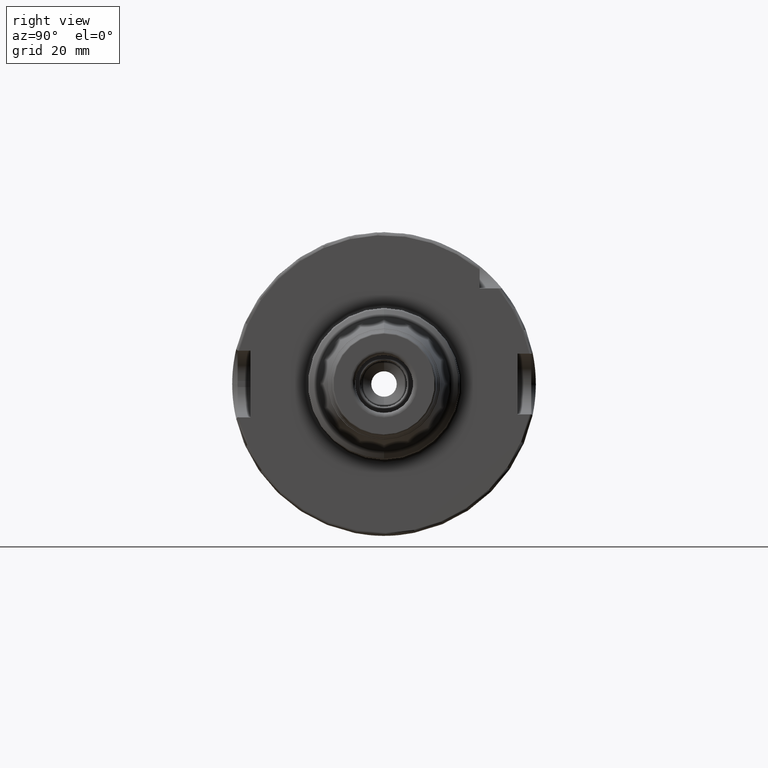
[diagram: clean part render]
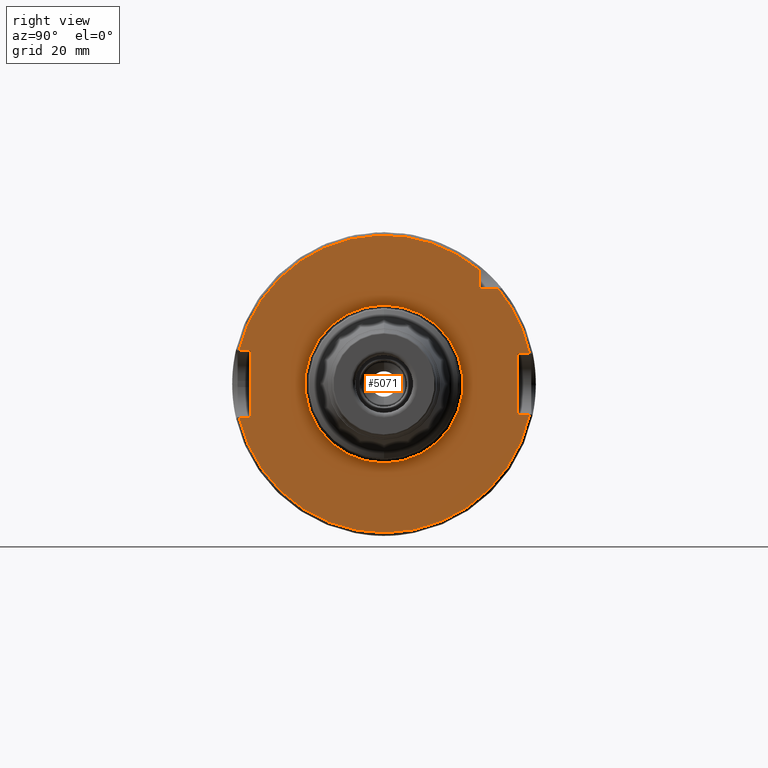
[diagram: same view with one face highlighted and labeled with its STEP entity id]
A machine part, right view. The second image highlights one B-rep face of the part: STEP entity #5071.
In plain terms, the highlighted planar face has unit normal (1, 0, 0).
Its self-contained STEP definition (entity closure, byte-faithful):
#1484=CARTESIAN_POINT('',(2.9E1,0.E0,0.E0));
#1485=DIRECTION('',(1.E0,0.E0,0.E0));
#1486=DIRECTION('',(0.E0,-9.744764396990E-1,-2.244897959184E-1));
#1487=AXIS2_PLACEMENT_3D('',#1484,#1485,#1486);
#1627=CARTESIAN_POINT('',(2.9E1,4.796873982085E1,-1.E1));
#1645=DIRECTION('',(0.E0,1.E0,0.E0));
#1646=VECTOR('',#1645,3.749345545253E0);
#1647=CARTESIAN_POINT('',(2.9E1,-4.774934554525E1,-1.1E1));
#1648=LINE('',#1647,#1646);
#1649=DIRECTION('',(0.E0,0.E0,1.E0));
#1650=VECTOR('',#1649,2.2E1);
#1651=CARTESIAN_POINT('',(2.9E1,-4.4E1,-1.1E1));
#1652=LINE('',#1651,#1650);
#1653=DIRECTION('',(0.E0,1.E0,0.E0));
#1654=VECTOR('',#1653,3.749345545253E0);
#1655=CARTESIAN_POINT('',(2.9E1,-4.774934554525E1,1.1E1));
#1656=LINE('',#1655,#1654);
#1657=DIRECTION('',(0.E0,0.E0,-1.E0));
#1658=VECTOR('',#1657,6.033318531673E0);
#1659=CARTESIAN_POINT('',(2.9E1,3.15E1,3.753331853167E1));
#1660=LINE('',#1659,#1658);
#1661=DIRECTION('',(0.E0,-1.E0,0.E0));
#1662=VECTOR('',#1661,6.033318531673E0);
#1663=CARTESIAN_POINT('',(2.9E1,3.753331853167E1,3.15E1));
#1664=LINE('',#1663,#1662);
#1665=DIRECTION('',(0.E0,-1.E0,0.E0));
#1666=VECTOR('',#1665,3.968739820846E0);
#1667=CARTESIAN_POINT('',(2.9E1,4.796873982085E1,1.E1));
#1668=LINE('',#1667,#1666);
#1669=DIRECTION('',(0.E0,0.E0,-1.E0));
#1670=VECTOR('',#1669,2.E1);
#1671=CARTESIAN_POINT('',(2.9E1,4.4E1,1.E1));
#1672=LINE('',#1671,#1670);
#1673=DIRECTION('',(0.E0,-1.E0,0.E0));
#1674=VECTOR('',#1673,3.968739820846E0);
#1675=CARTESIAN_POINT('',(2.9E1,4.796873982085E1,-1.E1));
#1676=LINE('',#1675,#1674);
#1677=CARTESIAN_POINT('',(2.9E1,0.E0,0.E0));
#1678=DIRECTION('',(1.E0,0.E0,0.E0));
#1679=DIRECTION('',(0.E0,0.E0,-1.E0));
#1680=AXIS2_PLACEMENT_3D('',#1677,#1678,#1679);
#1682=CARTESIAN_POINT('',(2.9E1,0.E0,0.E0));
#1683=DIRECTION('',(1.E0,0.E0,0.E0));
#1684=DIRECTION('',(0.E0,0.E0,1.E0));
#1685=AXIS2_PLACEMENT_3D('',#1682,#1683,#1684);
#1691=CARTESIAN_POINT('',(2.9E1,-4.774934554525E1,-1.1E1));
#1803=CARTESIAN_POINT('',(2.9E1,3.753331853167E1,3.15E1));
#1817=CARTESIAN_POINT('',(2.9E1,0.E0,0.E0));
#1818=DIRECTION('',(1.E0,0.E0,0.E0));
#1819=DIRECTION('',(0.E0,9.789538738948E-1,2.040816326531E-1));
#1820=AXIS2_PLACEMENT_3D('',#1817,#1818,#1819);
#1826=CARTESIAN_POINT('',(2.9E1,4.796873982085E1,1.E1));
#1949=CARTESIAN_POINT('',(2.9E1,3.15E1,3.753331853167E1));
#1965=CARTESIAN_POINT('',(2.9E1,0.E0,0.E0));
#1966=DIRECTION('',(1.E0,0.E0,0.E0));
#1967=DIRECTION('',(0.E0,6.428571428571E-1,7.659860924831E-1));
#1968=AXIS2_PLACEMENT_3D('',#1965,#1966,#1967);
#1970=CARTESIAN_POINT('',(2.9E1,-4.774934554525E1,1.1E1));
#2846=CARTESIAN_POINT('',(2.9E1,4.4E1,1.E1));
#2847=CARTESIAN_POINT('',(2.9E1,4.4E1,-1.E1));
#2848=VERTEX_POINT('',#2846);
#2849=VERTEX_POINT('',#2847);
#2870=CARTESIAN_POINT('',(2.9E1,-4.4E1,-1.1E1));
#2871=CARTESIAN_POINT('',(2.9E1,-4.4E1,1.1E1));
#2872=VERTEX_POINT('',#2870);
#2873=VERTEX_POINT('',#2871);
#2924=CARTESIAN_POINT('',(2.9E1,3.15E1,3.15E1));
#2926=VERTEX_POINT('',#2924);
#3151=VERTEX_POINT('',#1691);
#3152=VERTEX_POINT('',#1627);
#3157=VERTEX_POINT('',#1826);
#3158=VERTEX_POINT('',#1803);
#3161=VERTEX_POINT('',#1949);
#3162=VERTEX_POINT('',#1970);
#3297=CARTESIAN_POINT('',(2.9E1,0.E0,-2.6E1));
#3298=CARTESIAN_POINT('',(2.9E1,0.E0,2.6E1));
#3299=VERTEX_POINT('',#3297);
#3300=VERTEX_POINT('',#3298);
#5038=CARTESIAN_POINT('',(2.9E1,0.E0,0.E0));
#5039=DIRECTION('',(1.E0,0.E0,0.E0));
#5040=DIRECTION('',(0.E0,0.E0,1.E0));
#5041=AXIS2_PLACEMENT_3D('',#5038,#5039,#5040);
#5042=PLANE('',#5041);
#5043=ORIENTED_EDGE('',*,*,#4790,.F.);
#5045=ORIENTED_EDGE('',*,*,#5044,.T.);
#5047=ORIENTED_EDGE('',*,*,#5046,.T.);
#5049=ORIENTED_EDGE('',*,*,#5048,.F.);
#5051=ORIENTED_EDGE('',*,*,#5050,.F.);
#5053=ORIENTED_EDGE('',*,*,#5052,.T.);
#5055=ORIENTED_EDGE('',*,*,#5054,.F.);
#5057=ORIENTED_EDGE('',*,*,#5056,.F.);
#5059=ORIENTED_EDGE('',*,*,#5058,.T.);
#5061=ORIENTED_EDGE('',*,*,#5060,.T.);
#5062=ORIENTED_EDGE('',*,*,#5018,.F.);
#5063=EDGE_LOOP('',(#5043,#5045,#5047,#5049,#5051,#5053,#5055,#5057,#5059,#5061,
#5062));
#5064=FACE_OUTER_BOUND('',#5063,.F.);
#5066=ORIENTED_EDGE('',*,*,#5065,.T.);
#5068=ORIENTED_EDGE('',*,*,#5067,.T.);
#5069=EDGE_LOOP('',(#5066,#5068));
#5070=FACE_BOUND('',#5069,.F.);
#5071=ADVANCED_FACE('',(#5064,#5070),#5042,.T.);
#1488=CIRCLE('',#1487,4.9E1);
#1681=CIRCLE('',#1680,2.6E1);
#1686=CIRCLE('',#1685,2.6E1);
#1821=CIRCLE('',#1820,4.9E1);
#1969=CIRCLE('',#1968,4.9E1);
#4790=EDGE_CURVE('',#3151,#3152,#1488,.T.);
#5018=EDGE_CURVE('',#3152,#2849,#1676,.T.);
#5044=EDGE_CURVE('',#3151,#2872,#1648,.T.);
#5046=EDGE_CURVE('',#2872,#2873,#1652,.T.);
#5048=EDGE_CURVE('',#3162,#2873,#1656,.T.);
#5050=EDGE_CURVE('',#3161,#3162,#1969,.T.);
#5052=EDGE_CURVE('',#3161,#2926,#1660,.T.);
#5054=EDGE_CURVE('',#3158,#2926,#1664,.T.);
#5056=EDGE_CURVE('',#3157,#3158,#1821,.T.);
#5058=EDGE_CURVE('',#3157,#2848,#1668,.T.);
#5060=EDGE_CURVE('',#2848,#2849,#1672,.T.);
#5065=EDGE_CURVE('',#3299,#3300,#1681,.T.);
#5067=EDGE_CURVE('',#3300,#3299,#1686,.T.);